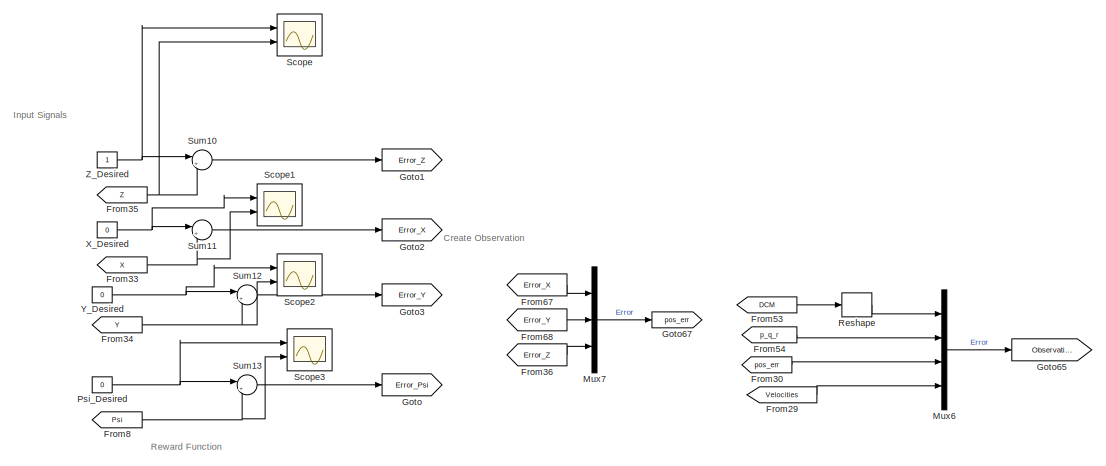
[diagram: root canvas - part 1/3, top left region]
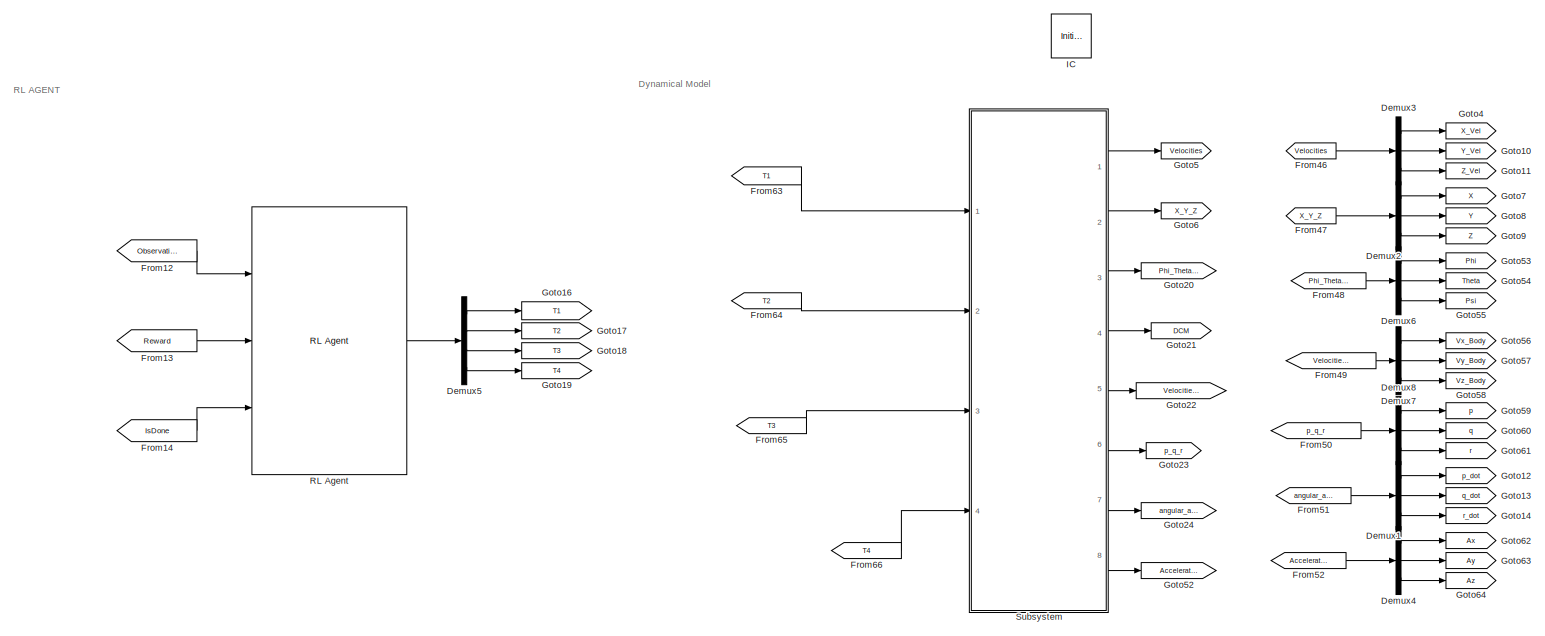
[diagram: root canvas - part 2/3, middle right region]
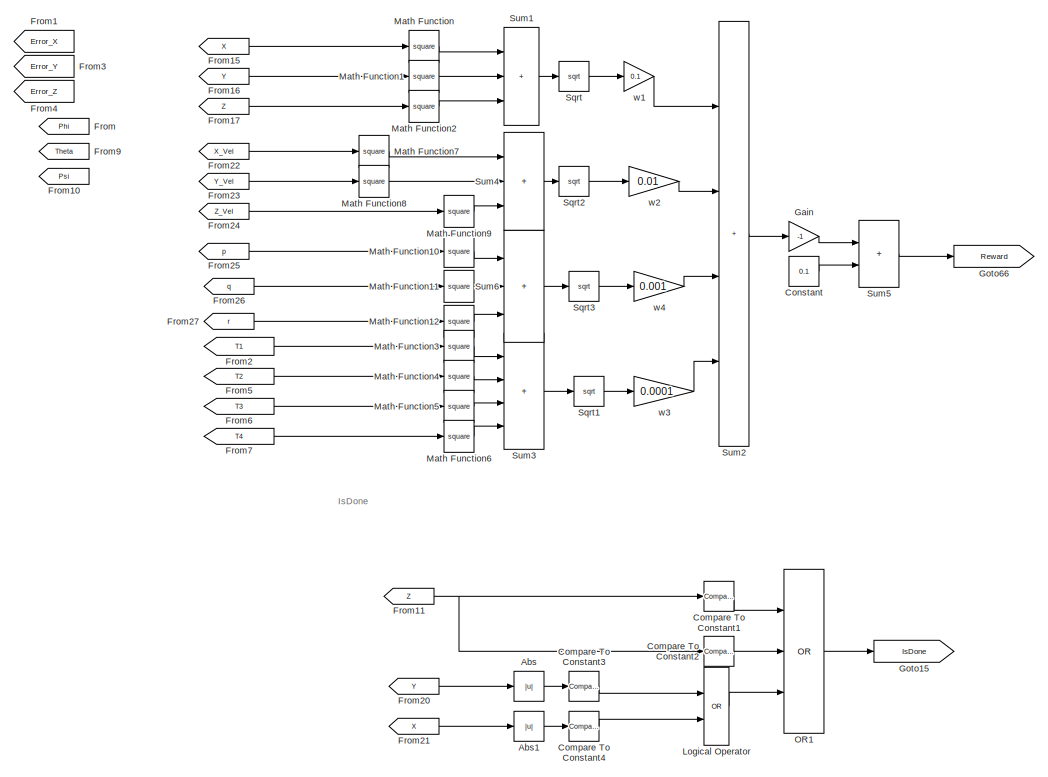
[diagram: root canvas - part 3/3, bottom left region]
MODEL slx_543de323d6c5
KIND model
CONFIG AbsTol = auto
CONFIG EnableMultiTasking = off
CONFIG FixedStep = 0.001
CONFIG MaxStep = auto
CONFIG MinStep = auto
CONFIG RelTol = 1e-3
CONFIG SampleTimeConstraint = Unconstrained
CONFIG SolverName = FixedStepAuto
CONFIG StartTime = 0.0
CONFIG StopTime = Tf
BLOCK [Abs] Abs
  SaturateOnIntegerOverflow = off
BLOCK [Abs] Abs1
  SaturateOnIntegerOverflow = off
BLOCK [Reference] Compare To Constant1  REF=simulink/Logic and Bit
Operations/Compare
To Constant
  Ports = [1, 1]
  SourceBlock = simulink/Logic and Bit\nOperations/Compare\nTo Constant
  SourceProductBaseCode = SL
  SourceType = Compare To Constant
BLOCK [Reference] Compare To Constant2  REF=simulink/Logic and Bit
Operations/Compare
To Constant
  Ports = [1, 1]
  SourceBlock = simulink/Logic and Bit\nOperations/Compare\nTo Constant
  SourceProductBaseCode = SL
  SourceType = Compare To Constant
BLOCK [Reference] Compare To Constant3  REF=simulink/Logic and Bit
Operations/Compare
To Constant
  Ports = [1, 1]
  SourceBlock = simulink/Logic and Bit\nOperations/Compare\nTo Constant
  SourceProductBaseCode = SL
  SourceType = Compare To Constant
BLOCK [Reference] Compare To Constant4  REF=simulink/Logic and Bit
Operations/Compare
To Constant
  Ports = [1, 1]
  SourceBlock = simulink/Logic and Bit\nOperations/Compare\nTo Constant
  SourceProductBaseCode = SL
  SourceType = Compare To Constant
BLOCK [Constant] Constant
  Value = 0.1
BLOCK [Demux] Demux1
  Outputs = 3
  Ports = [1, 3]
BLOCK [Demux] Demux2
  Outputs = 3
  Ports = [1, 3]
BLOCK [Demux] Demux3
  Outputs = 3
  Ports = [1, 3]
BLOCK [Demux] Demux4
  Outputs = 3
  Ports = [1, 3]
BLOCK [Demux] Demux5
  Ports = [1, 4]
BLOCK [Demux] Demux6
  Outputs = 3
  Ports = [1, 3]
BLOCK [Demux] Demux7
  Outputs = 3
  Ports = [1, 3]
BLOCK [Demux] Demux8
  Outputs = 3
  Ports = [1, 3]
BLOCK [From] From
  Commented = on
  GotoTag = Phi
BLOCK [From] From1
  Commented = on
  GotoTag = Error_X
BLOCK [From] From10
  Commented = on
  GotoTag = Psi
BLOCK [From] From11
  GotoTag = Z
BLOCK [From] From12
  GotoTag = Observations
BLOCK [From] From13
  GotoTag = Reward
BLOCK [From] From14
  GotoTag = IsDone
BLOCK [From] From15
  GotoTag = X
BLOCK [From] From16
  GotoTag = Y
BLOCK [From] From17
  GotoTag = Z
BLOCK [From] From2
  GotoTag = T1
BLOCK [From] From20
  GotoTag = Y
BLOCK [From] From21
  GotoTag = X
BLOCK [From] From22
  GotoTag = X_Vel
BLOCK [From] From23
  GotoTag = Y_Vel
BLOCK [From] From24
  GotoTag = Z_Vel
BLOCK [From] From25
  GotoTag = p
BLOCK [From] From26
  GotoTag = q
BLOCK [From] From27
  GotoTag = r
BLOCK [From] From29
  GotoTag = Velocities
BLOCK [From] From3
  Commented = on
  GotoTag = Error_Y
BLOCK [From] From30
  GotoTag = pos_err
BLOCK [From] From33
  GotoTag = X
BLOCK [From] From34
  GotoTag = Y
BLOCK [From] From35
  GotoTag = Z
BLOCK [From] From36
  GotoTag = Error_Z
BLOCK [From] From4
  Commented = on
  GotoTag = Error_Z
BLOCK [From] From46
  GotoTag = Velocities
BLOCK [From] From47
  GotoTag = X_Y_Z
BLOCK [From] From48
  GotoTag = Phi_Theta_Psi
BLOCK [From] From49
  GotoTag = Velocities_Body
BLOCK [From] From5
  GotoTag = T2
BLOCK [From] From50
  GotoTag = p_q_r
BLOCK [From] From51
  GotoTag = angular_acc
BLOCK [From] From52
  GotoTag = Accelerations
BLOCK [From] From53
  GotoTag = DCM
BLOCK [From] From54
  GotoTag = p_q_r
BLOCK [From] From6
  GotoTag = T3
BLOCK [From] From63
  GotoTag = T1
BLOCK [From] From64
  GotoTag = T2
BLOCK [From] From65
  GotoTag = T3
BLOCK [From] From66
  GotoTag = T4
BLOCK [From] From67
  GotoTag = Error_X
BLOCK [From] From68
  GotoTag = Error_Y
BLOCK [From] From7
  GotoTag = T4
BLOCK [From] From8
  GotoTag = Psi
BLOCK [From] From9
  Commented = on
  GotoTag = Theta
BLOCK [Gain] Gain
  Gain = -1
BLOCK [Goto] Goto
  GotoTag = Error_Psi
BLOCK [Goto] Goto1
  GotoTag = Error_Z
BLOCK [Goto] Goto10
  GotoTag = Y_Vel
BLOCK [Goto] Goto11
  GotoTag = Z_Vel
BLOCK [Goto] Goto12
  GotoTag = p_dot
BLOCK [Goto] Goto13
  GotoTag = q_dot
BLOCK [Goto] Goto14
  GotoTag = r_dot
BLOCK [Goto] Goto15
  GotoTag = IsDone
BLOCK [Goto] Goto16
  GotoTag = T1
BLOCK [Goto] Goto17
  GotoTag = T2
BLOCK [Goto] Goto18
  GotoTag = T3
BLOCK [Goto] Goto19
  GotoTag = T4
BLOCK [Goto] Goto2
  GotoTag = Error_X
BLOCK [Goto] Goto20
  GotoTag = Phi_Theta_Psi
BLOCK [Goto] Goto21
  GotoTag = DCM
BLOCK [Goto] Goto22
  GotoTag = Velocities_Body
BLOCK [Goto] Goto23
  GotoTag = p_q_r
BLOCK [Goto] Goto24
  GotoTag = angular_acc
BLOCK [Goto] Goto3
  GotoTag = Error_Y
BLOCK [Goto] Goto4
  GotoTag = X_Vel
BLOCK [Goto] Goto5
  GotoTag = Velocities
BLOCK [Goto] Goto52
  GotoTag = Accelerations
BLOCK [Goto] Goto53
  GotoTag = Phi
BLOCK [Goto] Goto54
  GotoTag = Theta
BLOCK [Goto] Goto55
  GotoTag = Psi
BLOCK [Goto] Goto56
  GotoTag = Vx_Body
BLOCK [Goto] Goto57
  GotoTag = Vy_Body
BLOCK [Goto] Goto58
  GotoTag = Vz_Body
BLOCK [Goto] Goto59
  GotoTag = p
BLOCK [Goto] Goto6
  GotoTag = X_Y_Z
BLOCK [Goto] Goto60
  GotoTag = q
BLOCK [Goto] Goto61
  GotoTag = r
BLOCK [Goto] Goto62
  GotoTag = Ax
BLOCK [Goto] Goto63
  GotoTag = Ay
BLOCK [Goto] Goto64
  GotoTag = Az
BLOCK [Goto] Goto65
  GotoTag = Observations
BLOCK [Goto] Goto66
  GotoTag = Reward
BLOCK [Goto] Goto67
  GotoTag = pos_err
BLOCK [Goto] Goto7
  GotoTag = X
BLOCK [Goto] Goto8
  GotoTag = Y
BLOCK [Goto] Goto9
  GotoTag = Z
BLOCK [InitialCondition] IC
  Commented = on
BLOCK [Logic] Logical Operator
  AllPortsSameDT = off
  Operator = OR
  Ports = [2, 1]
BLOCK [Math] Math Function
  Operator = square
  Ports = [1, 1]
BLOCK [Math] Math Function1
  Operator = square
  Ports = [1, 1]
BLOCK [Math] Math Function10
  Operator = square
  Ports = [1, 1]
BLOCK [Math] Math Function11
  Operator = square
  Ports = [1, 1]
BLOCK [Math] Math Function12
  Operator = square
  Ports = [1, 1]
BLOCK [Math] Math Function2
  Operator = square
  Ports = [1, 1]
BLOCK [Math] Math Function3
  Operator = square
  Ports = [1, 1]
BLOCK [Math] Math Function4
  Operator = square
  Ports = [1, 1]
BLOCK [Math] Math Function5
  Operator = square
  Ports = [1, 1]
BLOCK [Math] Math Function6
  Operator = square
  Ports = [1, 1]
BLOCK [Math] Math Function7
  Operator = square
  Ports = [1, 1]
BLOCK [Math] Math Function8
  Operator = square
  Ports = [1, 1]
BLOCK [Math] Math Function9
  Operator = square
  Ports = [1, 1]
BLOCK [Mux] Mux6
  DisplayOption = bar
  Ports = [4, 1]
BLOCK [Mux] Mux7
  DisplayOption = bar
  Inputs = 3
  Ports = [3, 1]
BLOCK [Logic] OR1
  AllPortsSameDT = off
  Inputs = 3
  Operator = OR
  OutDataTypeStr = boolean
  Ports = [3, 1]
BLOCK [Constant] Psi_Desired
  Value = 0
BLOCK [Reference] RL Agent  REF=rllib/RL Agent
  Ports = [3, 1]
  SourceBlock = rllib/RL Agent
  SourceProductBaseCode = RL
  SourceType = RL Agent
BLOCK [Reshape] Reshape
  Ports = [1, 1]
BLOCK [Scope] Scope
  Floating = off
  NumInputPorts = 2
  Ports = [2]
  ScopeSpecificationString = Simulink.scopes.TimeScopeBlockCfg('CurrentConfiguration', extmgr.ConfigurationSet(extmgr.Configuration('Core','General UI',true),extmgr.Configuration('Core','Source UI',true),extmgr.Configuration('Sources','WiredSimulink',true),extmgr.Configuration('Visuals','Time Domain',true,'SerializedDisplays',{struct('MinYLimReal','-0.84142','MaxYLimReal','7.57282','YLabelReal','','MinYLimMag','0.00000','MaxY...<+1371ch>
BLOCK [Scope] Scope1
  Floating = off
  NumInputPorts = 2
  Ports = [2]
  ScopeSpecificationString = Simulink.scopes.TimeScopeBlockCfg('CurrentConfiguration', extmgr.ConfigurationSet(extmgr.Configuration('Core','General UI',true),extmgr.Configuration('Core','Source UI',true),extmgr.Configuration('Sources','WiredSimulink',true,'DataLoggingVariableName','ScopeData1'),extmgr.Configuration('Visuals','Time Domain',true),extmgr.Configuration('Tools','Plot Navigation',true),extmgr.Configuration('Tools',...<+40ch>
BLOCK [Scope] Scope2
  Floating = off
  NumInputPorts = 2
  Ports = [2]
  ScopeSpecificationString = Simulink.scopes.TimeScopeBlockCfg('CurrentConfiguration', extmgr.ConfigurationSet(extmgr.Configuration('Core','General UI',true),extmgr.Configuration('Core','Source UI',true),extmgr.Configuration('Sources','WiredSimulink',true,'DataLoggingVariableName','ScopeData2'),extmgr.Configuration('Visuals','Time Domain',true),extmgr.Configuration('Tools','Plot Navigation',true),extmgr.Configuration('Tools',...<+40ch>
BLOCK [Scope] Scope3
  Floating = off
  NumInputPorts = 2
  Ports = [2]
  ScopeSpecificationString = Simulink.scopes.TimeScopeBlockCfg('CurrentConfiguration', extmgr.ConfigurationSet(extmgr.Configuration('Core','General UI',true),extmgr.Configuration('Core','Source UI',true),extmgr.Configuration('Sources','WiredSimulink',true,'DataLoggingVariableName','ScopeData3'),extmgr.Configuration('Visuals','Time Domain',true),extmgr.Configuration('Tools','Plot Navigation',true),extmgr.Configuration('Tools',...<+40ch>
BLOCK [Sqrt] Sqrt
BLOCK [Sqrt] Sqrt1
BLOCK [Sqrt] Sqrt2
BLOCK [Sqrt] Sqrt3
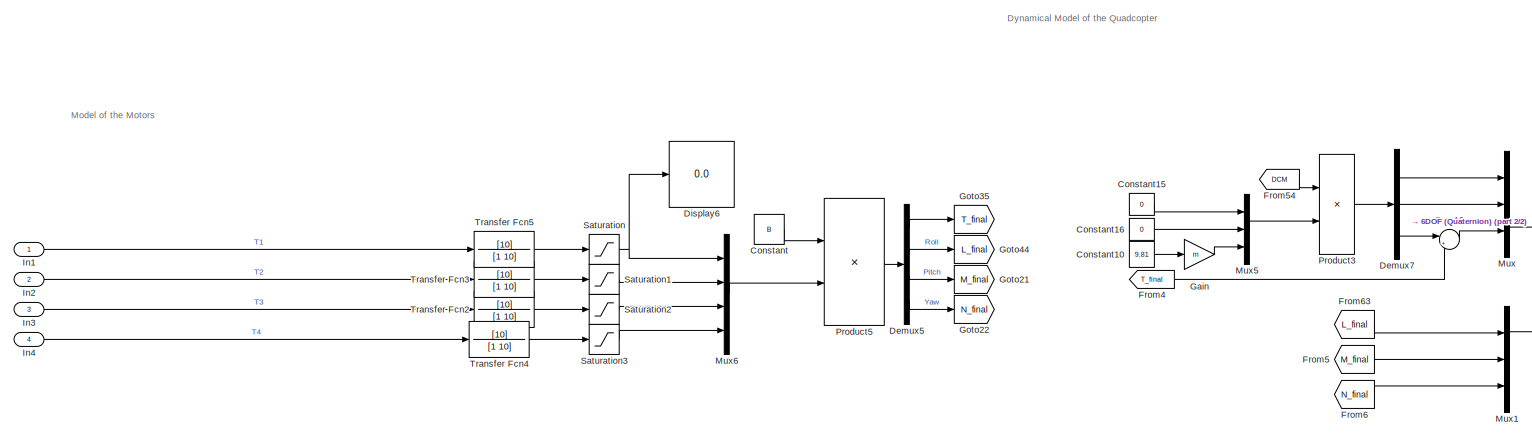
[diagram: Subsystem - part 1/2, left side, full height]
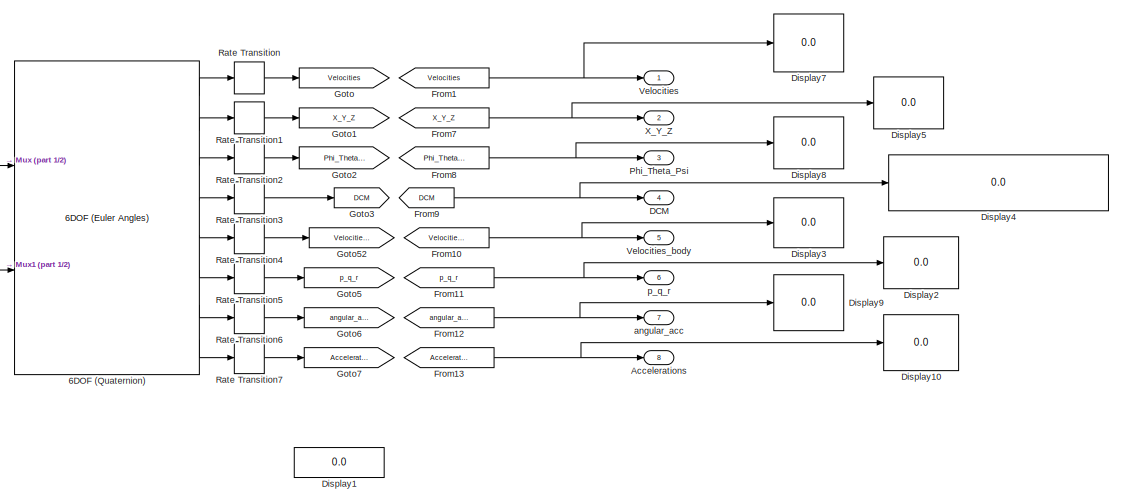
[diagram: Subsystem - part 2/2, right side, full height]
BLOCK [SubSystem] Subsystem
  Ports = [4, 8]
  RequestExecContextInheritance = off
BLOCK [Reference] Subsystem/6DOF (Quaternion)  REF=shared6dof/6DOF (Euler Angles)
  Ports = [2, 8]
  SourceBlock = shared6dof/6DOF (Euler Angles)
  SourceProductBaseCode = AE
  SourceType = 6DOF EoM (Body Axis)
BLOCK [Outport] Subsystem/Accelerations
  Port = 8
BLOCK [Constant] Subsystem/Constant
  Value = B
BLOCK [Constant] Subsystem/Constant10
  Value = 9.81
BLOCK [Constant] Subsystem/Constant15
  Value = 0
BLOCK [Constant] Subsystem/Constant16
  Value = 0
BLOCK [Outport] Subsystem/DCM
  Port = 4
BLOCK [Demux] Subsystem/Demux5
  Ports = [1, 4]
BLOCK [Demux] Subsystem/Demux7
  Outputs = 3
  Ports = [1, 3]
BLOCK [Display] Subsystem/Display1
  Decimation = 1
  Ports = [1]
BLOCK [Display] Subsystem/Display10
  Decimation = 1
  Ports = [1]
BLOCK [Display] Subsystem/Display2
  Decimation = 1
  Ports = [1]
BLOCK [Display] Subsystem/Display3
  Decimation = 1
  Ports = [1]
BLOCK [Display] Subsystem/Display4
  Decimation = 1
  Ports = [1]
BLOCK [Display] Subsystem/Display5
  Decimation = 1
  Ports = [1]
BLOCK [Display] Subsystem/Display6
  Decimation = 1
  Ports = [1]
BLOCK [Display] Subsystem/Display7
  Decimation = 1
  Ports = [1]
BLOCK [Display] Subsystem/Display8
  Decimation = 1
  Ports = [1]
BLOCK [Display] Subsystem/Display9
  Decimation = 1
  Ports = [1]
BLOCK [From] Subsystem/From1
  GotoTag = Velocities
BLOCK [From] Subsystem/From10
  GotoTag = Velocities_body
BLOCK [From] Subsystem/From11
  GotoTag = p_q_r
BLOCK [From] Subsystem/From12
  GotoTag = angular_acc
BLOCK [From] Subsystem/From13
  GotoTag = Accelerations
BLOCK [From] Subsystem/From4
  GotoTag = T_final
BLOCK [From] Subsystem/From5
  GotoTag = M_final
BLOCK [From] Subsystem/From54
  GotoTag = DCM
BLOCK [From] Subsystem/From6
  GotoTag = N_final
BLOCK [From] Subsystem/From63
  GotoTag = L_final
BLOCK [From] Subsystem/From7
  GotoTag = X_Y_Z
BLOCK [From] Subsystem/From8
  GotoTag = Phi_Theta_Psi
BLOCK [From] Subsystem/From9
  GotoTag = DCM
BLOCK [Gain] Subsystem/Gain
  Gain = m
BLOCK [Goto] Subsystem/Goto
  GotoTag = Velocities
BLOCK [Goto] Subsystem/Goto1
  GotoTag = X_Y_Z
BLOCK [Goto] Subsystem/Goto2
  GotoTag = Phi_Theta_Psi
BLOCK [Goto] Subsystem/Goto21
  GotoTag = M_final
BLOCK [Goto] Subsystem/Goto22
  GotoTag = N_final
BLOCK [Goto] Subsystem/Goto3
  GotoTag = DCM
BLOCK [Goto] Subsystem/Goto35
  GotoTag = T_final
BLOCK [Goto] Subsystem/Goto44
  GotoTag = L_final
BLOCK [Goto] Subsystem/Goto5
  GotoTag = p_q_r
BLOCK [Goto] Subsystem/Goto52
  GotoTag = Velocities_body
BLOCK [Goto] Subsystem/Goto6
  GotoTag = angular_acc
BLOCK [Goto] Subsystem/Goto7
  GotoTag = Accelerations
BLOCK [Inport] Subsystem/In1
BLOCK [Inport] Subsystem/In2
  Port = 2
BLOCK [Inport] Subsystem/In3
  Port = 3
BLOCK [Inport] Subsystem/In4
  Port = 4
BLOCK [Mux] Subsystem/Mux
  DisplayOption = bar
  Inputs = 3
  Ports = [3, 1]
BLOCK [Mux] Subsystem/Mux1
  DisplayOption = bar
  Inputs = 3
  Ports = [3, 1]
BLOCK [Mux] Subsystem/Mux5
  DisplayOption = bar
  Inputs = 3
  Ports = [3, 1]
BLOCK [Mux] Subsystem/Mux6
  DisplayOption = bar
  Ports = [4, 1]
BLOCK [Outport] Subsystem/Phi_Theta_Psi
  Port = 3
BLOCK [Product] Subsystem/Product3
  Multiplication = Matrix(*)
  Ports = [2, 1]
BLOCK [Product] Subsystem/Product5
  Multiplication = Matrix(*)
  Ports = [2, 1]
BLOCK [RateTransition] Subsystem/Rate Transition
  OutPortSampleTime = 0.02
BLOCK [RateTransition] Subsystem/Rate Transition1
  OutPortSampleTime = 0.02
BLOCK [RateTransition] Subsystem/Rate Transition2
  OutPortSampleTime = 0.02
BLOCK [RateTransition] Subsystem/Rate Transition3
  OutPortSampleTime = 0.02
BLOCK [RateTransition] Subsystem/Rate Transition4
  OutPortSampleTime = 0.02
BLOCK [RateTransition] Subsystem/Rate Transition5
  OutPortSampleTime = 0.02
BLOCK [RateTransition] Subsystem/Rate Transition6
  OutPortSampleTime = 0.02
BLOCK [RateTransition] Subsystem/Rate Transition7
  OutPortSampleTime = 0.02
BLOCK [Saturate] Subsystem/Saturation
  LowerLimit = 0
  UpperLimit = 500
BLOCK [Saturate] Subsystem/Saturation1
  LowerLimit = 0
  UpperLimit = 500
BLOCK [Saturate] Subsystem/Saturation2
  LowerLimit = 0
  UpperLimit = 500
BLOCK [Saturate] Subsystem/Saturation3
  LowerLimit = 0
  UpperLimit = 500
BLOCK [Sum] Subsystem/Sum12
  Inputs = |++
  Ports = [2, 1]
BLOCK [TransferFcn] Subsystem/Transfer Fcn2
  Denominator = [1 10]
  Numerator = [10]
BLOCK [TransferFcn] Subsystem/Transfer Fcn3
  Denominator = [1 10]
  Numerator = [10]
BLOCK [TransferFcn] Subsystem/Transfer Fcn4
  Denominator = [1 10]
  Numerator = [10]
BLOCK [TransferFcn] Subsystem/Transfer Fcn5
  Denominator = [1 10]
  Numerator = [10]
BLOCK [Outport] Subsystem/Velocities
BLOCK [Outport] Subsystem/Velocities_body
  Port = 5
BLOCK [Outport] Subsystem/X_Y_Z
  Port = 2
BLOCK [Outport] Subsystem/angular_acc
  Port = 7
BLOCK [Outport] Subsystem/p_q_r
  Port = 6
BLOCK [Sum] Sum1
  IconShape = rectangular
  Inputs = +++
  Ports = [3, 1]
BLOCK [Sum] Sum10
  Inputs = |+-
  Ports = [2, 1]
BLOCK [Sum] Sum11
  Inputs = |+-
  Ports = [2, 1]
BLOCK [Sum] Sum12
  Inputs = |+-
  Ports = [2, 1]
BLOCK [Sum] Sum13
  Inputs = |+-
  Ports = [2, 1]
BLOCK [Sum] Sum2
  IconShape = rectangular
  Inputs = ++++
  Ports = [4, 1]
BLOCK [Sum] Sum3
  IconShape = rectangular
  Inputs = ++++
  Ports = [4, 1]
BLOCK [Sum] Sum4
  IconShape = rectangular
  Inputs = +++
  Ports = [3, 1]
BLOCK [Sum] Sum5
  IconShape = rectangular
  Ports = [2, 1]
BLOCK [Sum] Sum6
  IconShape = rectangular
  Inputs = +++
  Ports = [3, 1]
BLOCK [Constant] X_Desired
  Value = 0
BLOCK [Constant] Y_Desired
  Value = 0
BLOCK [Constant] Z_Desired
BLOCK [Gain] w1
  Gain = 0.1
BLOCK [Gain] w2
  Gain = 0.01
BLOCK [Gain] w3
  Gain = 0.0001
BLOCK [Gain] w4
  Gain = 0.001
ANNOTATION (root): Create Observation
ANNOTATION (root): Dynamical Model
ANNOTATION (root): Input Signals
ANNOTATION (root): IsDone
ANNOTATION (root): RL AGENT
ANNOTATION (root): Reward Function
ANNOTATION Subsystem: Dynamical Model of the Quadcopter
ANNOTATION Subsystem: Model of the Motors
LINE Abs1:1 -> Compare To Constant4:1
LINE Abs:1 -> Compare To Constant3:1
LINE Compare To Constant1:1 -> OR1:1
LINE Compare To Constant2:1 -> OR1:2
LINE Compare To Constant3:1 -> Logical Operator:1
LINE Compare To Constant4:1 -> Logical Operator:2
LINE Constant:1 -> Sum5:2
LINE Demux1:1 -> Goto12:1
LINE Demux1:2 -> Goto13:1
LINE Demux1:3 -> Goto14:1
LINE Demux2:1 -> Goto7:1
LINE Demux2:2 -> Goto8:1
LINE Demux2:3 -> Goto9:1
LINE Demux3:1 -> Goto4:1
LINE Demux3:2 -> Goto10:1
LINE Demux3:3 -> Goto11:1
LINE Demux4:1 -> Goto62:1
LINE Demux4:2 -> Goto63:1
LINE Demux4:3 -> Goto64:1
LINE Demux5:1 -> Goto16:1
LINE Demux5:2 -> Goto17:1
LINE Demux5:3 -> Goto18:1
LINE Demux5:4 -> Goto19:1
LINE Demux6:1 -> Goto53:1
LINE Demux6:2 -> Goto54:1
LINE Demux6:3 -> Goto55:1
LINE Demux7:1 -> Goto56:1
LINE Demux7:2 -> Goto57:1
LINE Demux7:3 -> Goto58:1
LINE Demux8:1 -> Goto59:1
LINE Demux8:2 -> Goto60:1
LINE Demux8:3 -> Goto61:1
NET From11:1 -> Compare To Constant1:1, Compare To Constant2:1
LINE From12:1 -> RL Agent:1
LINE From13:1 -> RL Agent:2
LINE From14:1 -> RL Agent:3
LINE From15:1 -> Math Function:1
LINE From16:1 -> Math Function1:1
LINE From17:1 -> Math Function2:1
LINE From20:1 -> Abs:1
LINE From21:1 -> Abs1:1
LINE From22:1 -> Math Function7:1
LINE From23:1 -> Math Function8:1
LINE From24:1 -> Math Function9:1
LINE From25:1 -> Math Function10:1
LINE From26:1 -> Math Function11:1
LINE From27:1 -> Math Function12:1
LINE From29:1 -> Mux6:4
LINE From2:1 -> Math Function3:1
LINE From30:1 -> Mux6:3
NET From33:1 -> Scope1:2, Sum11:2
NET From34:1 -> Scope2:2, Sum12:2
NET From35:1 -> Scope:2, Sum10:2
LINE From36:1 -> Mux7:3
LINE From46:1 -> Demux3:1
LINE From47:1 -> Demux2:1
LINE From48:1 -> Demux6:1
LINE From49:1 -> Demux7:1
LINE From50:1 -> Demux8:1
LINE From51:1 -> Demux1:1
LINE From52:1 -> Demux4:1
LINE From53:1 -> Reshape:1
LINE From54:1 -> Mux6:2
LINE From5:1 -> Math Function4:1
LINE From63:1 -> Subsystem:1
LINE From64:1 -> Subsystem:2
LINE From65:1 -> Subsystem:3
LINE From66:1 -> Subsystem:4
LINE From67:1 -> Mux7:1
LINE From68:1 -> Mux7:2
LINE From6:1 -> Math Function5:1
LINE From7:1 -> Math Function6:1
NET From8:1 -> Scope3:2, Sum13:2
LINE Gain:1 -> Sum5:1
LINE Logical Operator:1 -> OR1:3
LINE Math Function10:1 -> Sum6:1
LINE Math Function11:1 -> Sum6:2
LINE Math Function12:1 -> Sum6:3
LINE Math Function1:1 -> Sum1:2
LINE Math Function2:1 -> Sum1:3
LINE Math Function3:1 -> Sum3:1
LINE Math Function4:1 -> Sum3:2
LINE Math Function5:1 -> Sum3:3
LINE Math Function6:1 -> Sum3:4
LINE Math Function7:1 -> Sum4:1
LINE Math Function8:1 -> Sum4:2
LINE Math Function9:1 -> Sum4:3
LINE Math Function:1 -> Sum1:1
LINE Mux6:1 -> Goto65:1
LINE Mux7:1 -> Goto67:1
LINE OR1:1 -> Goto15:1
NET Psi_Desired:1 -> Scope3:1, Sum13:1
LINE RL Agent:1 -> Demux5:1
LINE Reshape:1 -> Mux6:1
LINE Sqrt1:1 -> w3:1
LINE Sqrt2:1 -> w2:1
LINE Sqrt3:1 -> w4:1
LINE Sqrt:1 -> w1:1
LINE Subsystem/6DOF (Quaternion):1 -> Subsystem/Rate Transition:1
LINE Subsystem/6DOF (Quaternion):2 -> Subsystem/Rate Transition1:1
LINE Subsystem/6DOF (Quaternion):3 -> Subsystem/Rate Transition2:1
LINE Subsystem/6DOF (Quaternion):4 -> Subsystem/Rate Transition3:1
LINE Subsystem/6DOF (Quaternion):5 -> Subsystem/Rate Transition4:1
LINE Subsystem/6DOF (Quaternion):6 -> Subsystem/Rate Transition5:1
LINE Subsystem/6DOF (Quaternion):7 -> Subsystem/Rate Transition6:1
LINE Subsystem/6DOF (Quaternion):8 -> Subsystem/Rate Transition7:1
LINE Subsystem/Constant10:1 -> Subsystem/Gain:1
LINE Subsystem/Constant15:1 -> Subsystem/Mux5:1
LINE Subsystem/Constant16:1 -> Subsystem/Mux5:2
LINE Subsystem/Constant:1 -> Subsystem/Product5:1
LINE Subsystem/Demux5:1 -> Subsystem/Goto35:1
LINE Subsystem/Demux5:2 -> Subsystem/Goto44:1
LINE Subsystem/Demux5:3 -> Subsystem/Goto21:1
LINE Subsystem/Demux5:4 -> Subsystem/Goto22:1
LINE Subsystem/Demux7:1 -> Subsystem/Mux:1
LINE Subsystem/Demux7:2 -> Subsystem/Mux:2
LINE Subsystem/Demux7:3 -> Subsystem/Sum12:1
NET Subsystem/From10:1 -> Subsystem/Display3:1, Subsystem/Velocities_body:1
NET Subsystem/From11:1 -> Subsystem/Display2:1, Subsystem/p_q_r:1
NET Subsystem/From12:1 -> Subsystem/Display9:1, Subsystem/angular_acc:1
NET Subsystem/From13:1 -> Subsystem/Accelerations:1, Subsystem/Display10:1
NET Subsystem/From1:1 -> Subsystem/Display7:1, Subsystem/Velocities:1
LINE Subsystem/From4:1 -> Subsystem/Sum12:2
LINE Subsystem/From54:1 -> Subsystem/Product3:1
LINE Subsystem/From5:1 -> Subsystem/Mux1:2
LINE Subsystem/From63:1 -> Subsystem/Mux1:1
LINE Subsystem/From6:1 -> Subsystem/Mux1:3
NET Subsystem/From7:1 -> Subsystem/Display5:1, Subsystem/X_Y_Z:1
NET Subsystem/From8:1 -> Subsystem/Display8:1, Subsystem/Phi_Theta_Psi:1
NET Subsystem/From9:1 -> Subsystem/DCM:1, Subsystem/Display4:1
LINE Subsystem/Gain:1 -> Subsystem/Mux5:3
LINE Subsystem/In1:1 -> Subsystem/Transfer Fcn5:1
LINE Subsystem/In2:1 -> Subsystem/Transfer Fcn3:1
LINE Subsystem/In3:1 -> Subsystem/Transfer Fcn2:1
LINE Subsystem/In4:1 -> Subsystem/Transfer Fcn4:1
LINE Subsystem/Mux1:1 -> Subsystem/6DOF (Quaternion):2
LINE Subsystem/Mux5:1 -> Subsystem/Product3:2
LINE Subsystem/Mux6:1 -> Subsystem/Product5:2
LINE Subsystem/Mux:1 -> Subsystem/6DOF (Quaternion):1
LINE Subsystem/Product3:1 -> Subsystem/Demux7:1
LINE Subsystem/Product5:1 -> Subsystem/Demux5:1
LINE Subsystem/Rate Transition1:1 -> Subsystem/Goto1:1
LINE Subsystem/Rate Transition2:1 -> Subsystem/Goto2:1
LINE Subsystem/Rate Transition3:1 -> Subsystem/Goto3:1
LINE Subsystem/Rate Transition4:1 -> Subsystem/Goto52:1
LINE Subsystem/Rate Transition5:1 -> Subsystem/Goto5:1
LINE Subsystem/Rate Transition6:1 -> Subsystem/Goto6:1
LINE Subsystem/Rate Transition7:1 -> Subsystem/Goto7:1
LINE Subsystem/Rate Transition:1 -> Subsystem/Goto:1
LINE Subsystem/Saturation1:1 -> Subsystem/Mux6:2
LINE Subsystem/Saturation2:1 -> Subsystem/Mux6:3
LINE Subsystem/Saturation3:1 -> Subsystem/Mux6:4
NET Subsystem/Saturation:1 -> Subsystem/Display6:1, Subsystem/Mux6:1
LINE Subsystem/Sum12:1 -> Subsystem/Mux:3
LINE Subsystem/Transfer Fcn2:1 -> Subsystem/Saturation2:1
LINE Subsystem/Transfer Fcn3:1 -> Subsystem/Saturation1:1
LINE Subsystem/Transfer Fcn4:1 -> Subsystem/Saturation3:1
LINE Subsystem/Transfer Fcn5:1 -> Subsystem/Saturation:1
LINE Subsystem:1 -> Goto5:1
LINE Subsystem:2 -> Goto6:1
LINE Subsystem:3 -> Goto20:1
LINE Subsystem:4 -> Goto21:1
LINE Subsystem:5 -> Goto22:1
LINE Subsystem:6 -> Goto23:1
LINE Subsystem:7 -> Goto24:1
LINE Subsystem:8 -> Goto52:1
LINE Sum10:1 -> Goto1:1
LINE Sum11:1 -> Goto2:1
LINE Sum12:1 -> Goto3:1
LINE Sum13:1 -> Goto:1
LINE Sum1:1 -> Sqrt:1
LINE Sum2:1 -> Gain:1
LINE Sum3:1 -> Sqrt1:1
LINE Sum4:1 -> Sqrt2:1
LINE Sum5:1 -> Goto66:1
LINE Sum6:1 -> Sqrt3:1
NET X_Desired:1 -> Scope1:1, Sum11:1
NET Y_Desired:1 -> Scope2:1, Sum12:1
NET Z_Desired:1 -> Scope:1, Sum10:1
LINE w1:1 -> Sum2:1
LINE w2:1 -> Sum2:2
LINE w3:1 -> Sum2:4
LINE w4:1 -> Sum2:3
note: NET lines group one-source signal fan-out (src -> all destinations, sorted); 1:1 wires keep LINE
